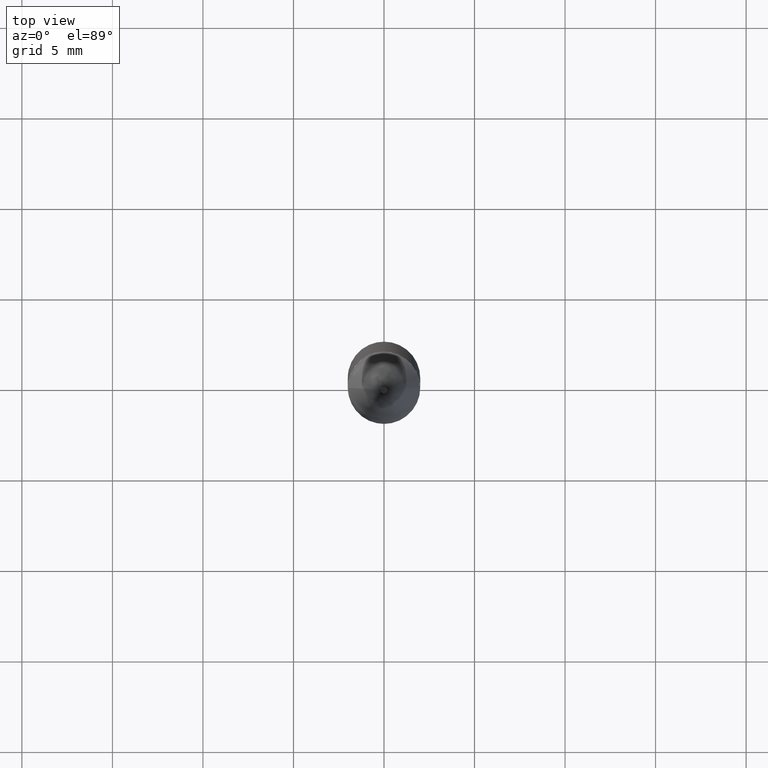
[diagram: clean part render]
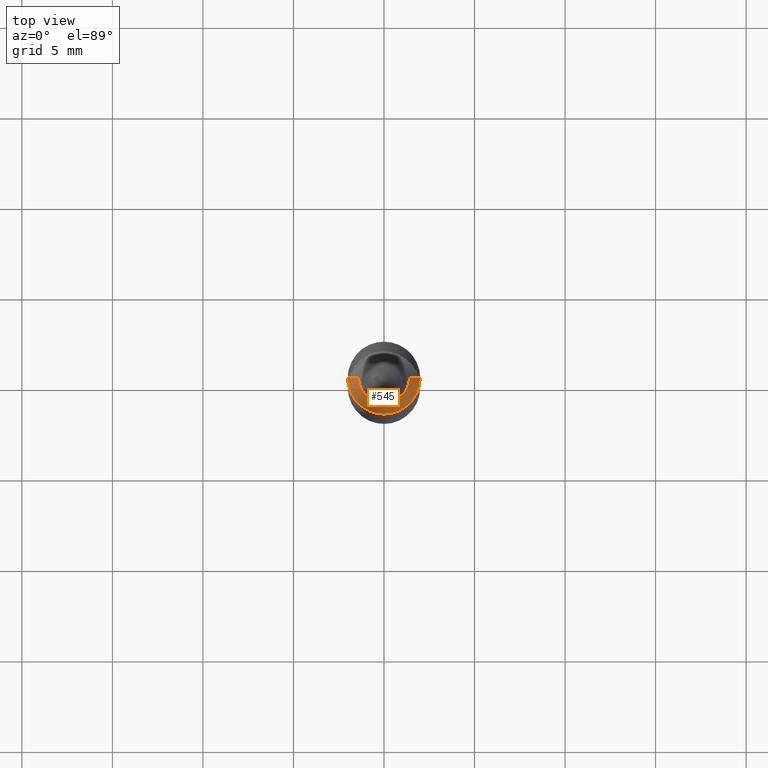
[diagram: same view with one face highlighted and labeled with its STEP entity id]
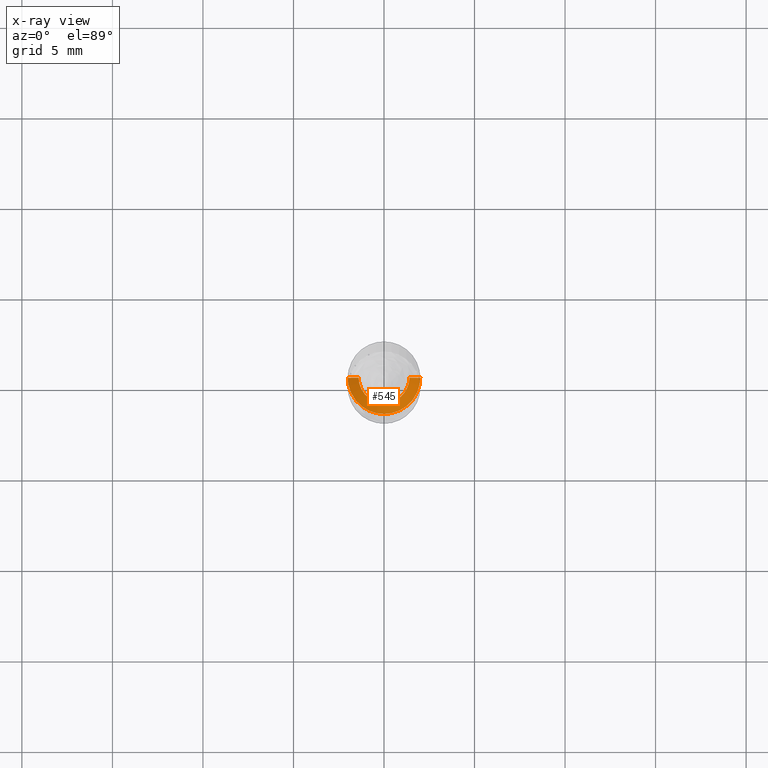
[diagram: x-ray of the same camera — body ghosted, the highlighted face saturated]
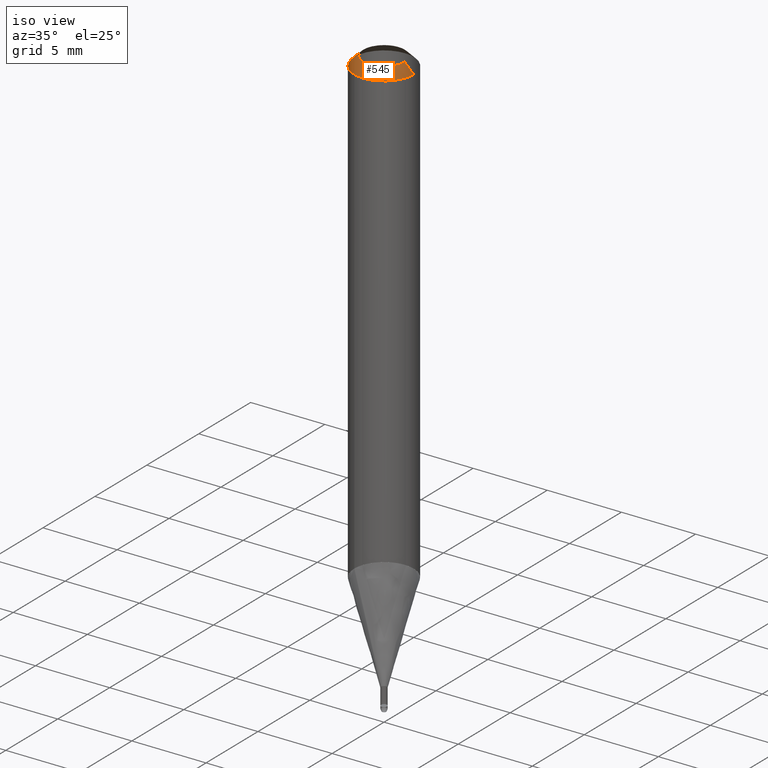
[diagram: same view with one face highlighted and labeled with its STEP entity id]
A machine part, top view. The second image highlights one B-rep face of the part: STEP entity #545.
The next image is the same camera in x-ray: the body ghosted, the highlighted face saturated — about 0% of this face is hidden behind the body in this view.
A second angle (iso view) of the same face is appended — the face is thin or edge-on in the first view.
In plain terms, the highlighted face is a freeform B-spline surface patch.
Its self-contained STEP definition (entity closure, byte-faithful):
#202=CARTESIAN_POINT('',(2.0,0.0,31.18));
#206=CARTESIAN_POINT('',(-2.0,0.0,31.18));
#207=CARTESIAN_POINT('',(1.4,0.0,31.78));
#211=CARTESIAN_POINT('',(-1.4,0.0,31.78));
#219=CARTESIAN_POINT('',(-2.0,-2.0,31.18));
#220=CARTESIAN_POINT('',(0.0,-2.0,31.18));
#221=CARTESIAN_POINT('',(2.0,-2.0,31.18));
#222=CARTESIAN_POINT('',(-1.4,-1.4,31.78));
#223=CARTESIAN_POINT('',(0.0,-1.4,31.78));
#224=CARTESIAN_POINT('',(1.4,-1.4,31.78));
#526=(
BOUNDED_SURFACE()
B_SPLINE_SURFACE(1,2,(
(#206,#219,#220,#221,#202),
(#211,#222,#223,#224,#207)
), .UNSPECIFIED.,.F.,.F.,.F.)
B_SPLINE_SURFACE_WITH_KNOTS((2,2),(3,2,3),(
0.0,1.0),(
0.0,0.5,1.0), .UNSPECIFIED.)
GEOMETRIC_REPRESENTATION_ITEM()
RATIONAL_B_SPLINE_SURFACE(((1.0,0.707106781187,1.0,0.707106781187,1.0),
(1.0,0.707106781187,1.0,0.707106781187,1.0)
))
REPRESENTATION_ITEM('')
SURFACE()
);
#527=(
BOUNDED_CURVE()
B_SPLINE_CURVE(2,(#211,#222,#223,#224,#207),.UNSPECIFIED.,.F.,.F.)
B_SPLINE_CURVE_WITH_KNOTS((3,2,3),
(0.0,0.5,1.0),.UNSPECIFIED.)
CURVE()
GEOMETRIC_REPRESENTATION_ITEM()
RATIONAL_B_SPLINE_CURVE((1.0,0.707106781187,1.0,0.707106781187,1.0))
REPRESENTATION_ITEM('')
);
#528=(
BOUNDED_CURVE()
B_SPLINE_CURVE(1,(#207,#202),.UNSPECIFIED.,.F.,.F.)
B_SPLINE_CURVE_WITH_KNOTS((2,2),
(0.0,1.0),.UNSPECIFIED.)
CURVE()
GEOMETRIC_REPRESENTATION_ITEM()
RATIONAL_B_SPLINE_CURVE((1.0,1.0))
REPRESENTATION_ITEM('')
);
#529=(
BOUNDED_CURVE()
B_SPLINE_CURVE(2,(#202,#221,#220,#219,#206),.UNSPECIFIED.,.F.,.F.)
B_SPLINE_CURVE_WITH_KNOTS((3,2,3),
(0.0,0.5,1.0),.UNSPECIFIED.)
CURVE()
GEOMETRIC_REPRESENTATION_ITEM()
RATIONAL_B_SPLINE_CURVE((1.0,0.707106781187,1.0,0.707106781187,1.0))
REPRESENTATION_ITEM('')
);
#530=(
BOUNDED_CURVE()
B_SPLINE_CURVE(1,(#206,#211),.UNSPECIFIED.,.F.,.F.)
B_SPLINE_CURVE_WITH_KNOTS((2,2),
(0.0,1.0),.UNSPECIFIED.)
CURVE()
GEOMETRIC_REPRESENTATION_ITEM()
RATIONAL_B_SPLINE_CURVE((1.0,1.0))
REPRESENTATION_ITEM('')
);
#531=VERTEX_POINT('',#202);
#532=VERTEX_POINT('',#206);
#533=VERTEX_POINT('',#207);
#534=VERTEX_POINT('',#211);
#535=EDGE_CURVE('',#534,#533,#527,.T.);
#536=EDGE_CURVE('',#533,#531,#528,.T.);
#537=EDGE_CURVE('',#531,#532,#529,.T.);
#538=EDGE_CURVE('',#532,#534,#530,.T.);
#539=ORIENTED_EDGE('',*,*,#535,.T.);
#540=ORIENTED_EDGE('',*,*,#536,.T.);
#541=ORIENTED_EDGE('',*,*,#537,.T.);
#542=ORIENTED_EDGE('',*,*,#538,.T.);
#543=EDGE_LOOP('',(#539,#540,#541,#542));
#544=FACE_OUTER_BOUND('',#543,.T.);
#545=ADVANCED_FACE('',(#544),#526,.T.);